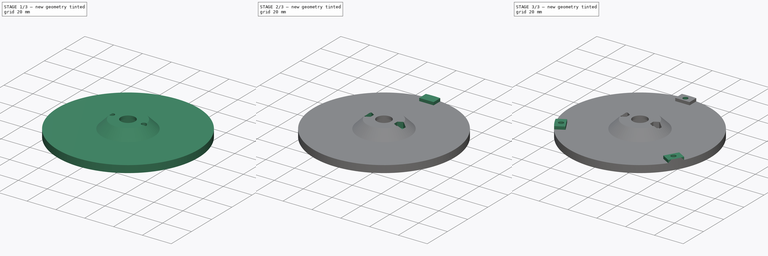
[diagram: build sequence overview — one tinted view per stage of 3, left to right]
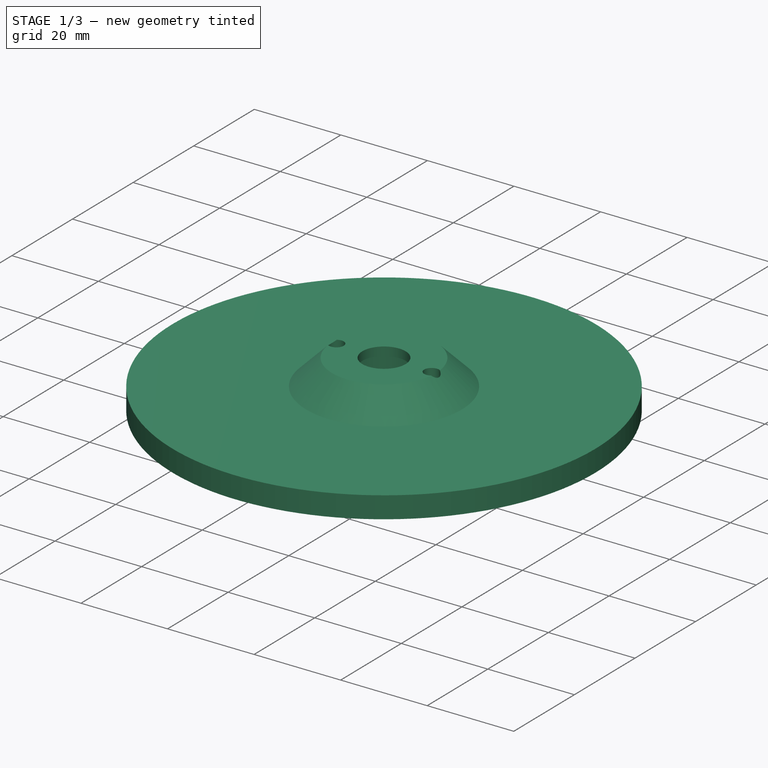
[diagram: stage 1 of 3 — iso view after this stage's code; geometry added in this stage tinted green]
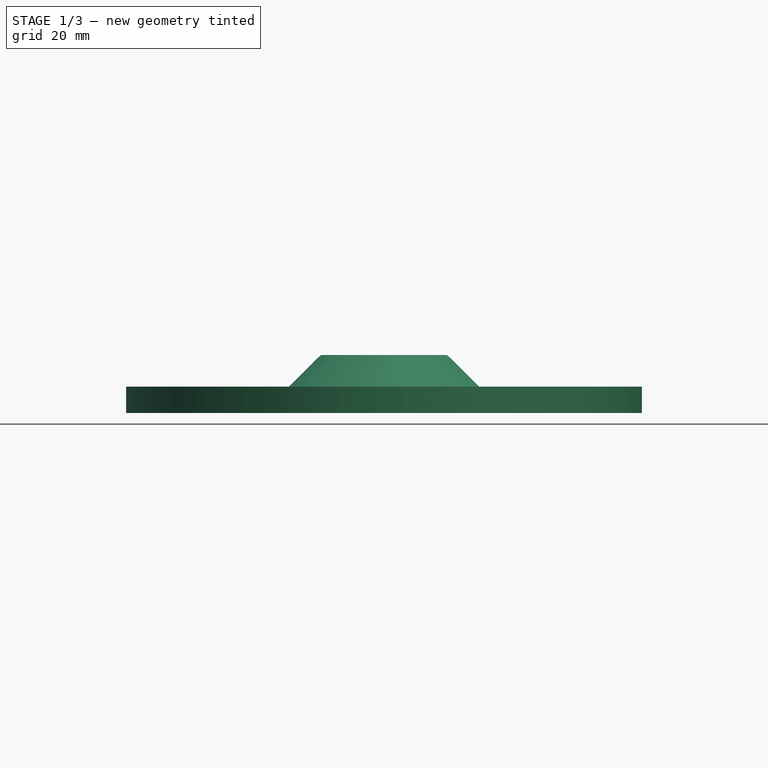
[diagram: stage 1 of 3 — front view after this stage's code; geometry added in this stage tinted green]
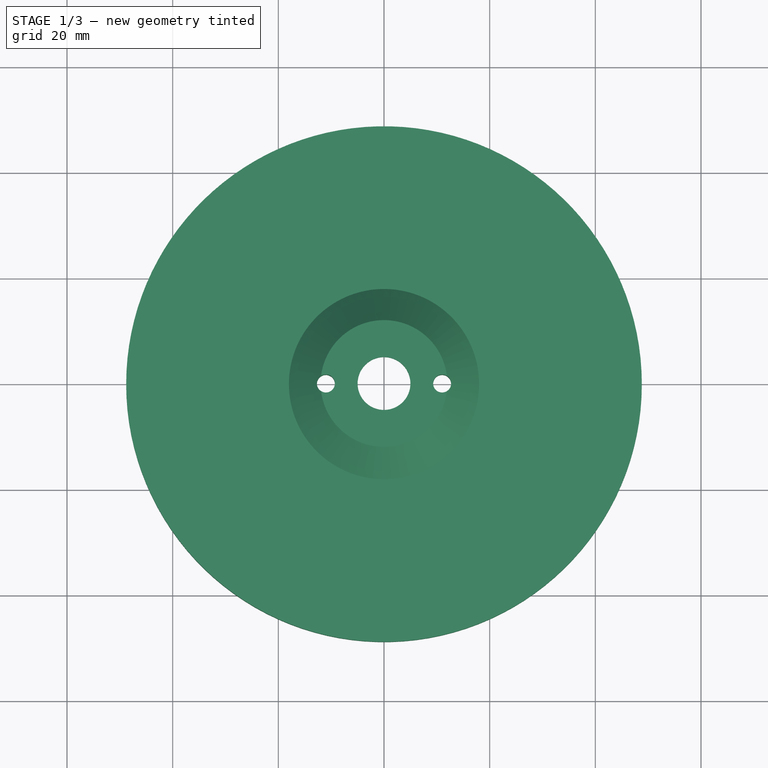
[diagram: stage 1 of 3 — top view after this stage's code; geometry added in this stage tinted green]
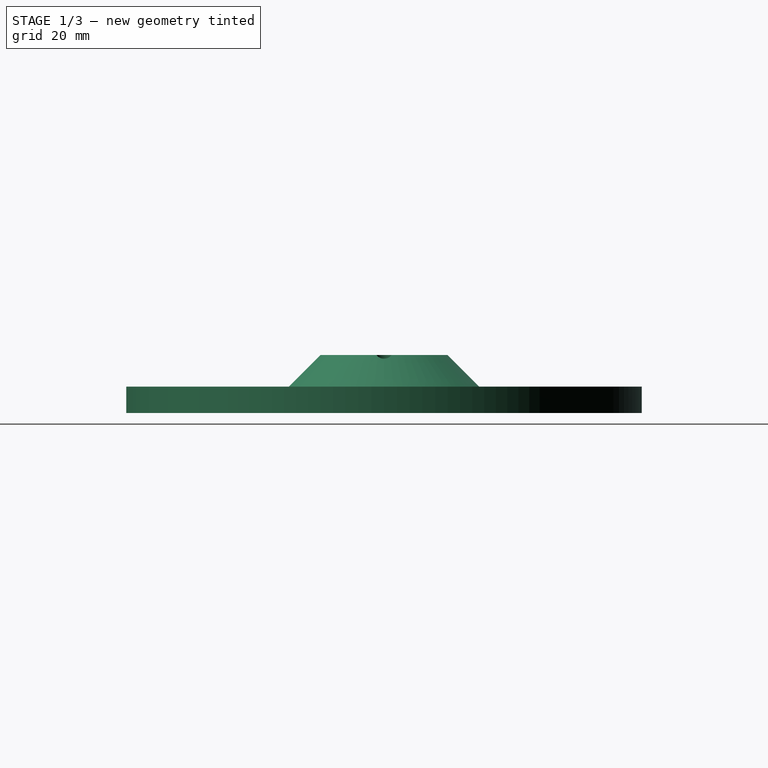
[diagram: stage 1 of 3 — right view after this stage's code; geometry added in this stage tinted green]
FCSTD DOCUMENT  (FreeCAD 0.19R24276 (Git))
Label: Art2BodyAWindow
License: All rights reserved
LicenseURL: http://en.wikipedia.org/wiki/All_rights_reserved
objects: Sketcher::SketchObject×7, PartDesign::Pocket×5, PartDesign::Line×5, PartDesign::CoordinateSystem×3, Spreadsheet::Sheet×1, PartDesign::Revolution×1, PartDesign::Pad×1, PartDesign::PolarPattern×1, PartDesign::Body×1
note: 31 computed .brp shape members not serialized (recipe doc carries the construction recipe); baked Part::Feature solids carry a one-line shape summary decoded from their .brp

FEATURE [Sketcher::SketchObject] Sketch
  FullyConstrained = true
  MapMode = 5
  Placement = pos=(0,0,0) rot=(1,0,0;1.5708rad)
  Support = -> [XZ_Plane]
  expr: Constraints[15] = Spreadsheet.Bearing655ZZBodyRadius
  sketch-geometry (8):
    g0: LineSegment StartX=5 StartY=11 StartZ=0 EndX=5 EndY=9 EndZ=0
    g1: LineSegment StartX=5 StartY=9 StartZ=0 EndX=8.2 EndY=9 EndZ=0
    g2: LineSegment StartX=8.2 StartY=9 StartZ=0 EndX=8.2 EndY=0 EndZ=0
    g3: LineSegment StartX=8.2 StartY=0 StartZ=0 EndX=48.8 EndY=0 EndZ=0
    g4: LineSegment StartX=48.8 StartY=0 StartZ=0 EndX=48.8 EndY=5 EndZ=0
    g5: LineSegment StartX=48.8 StartY=5 StartZ=0 EndX=18 EndY=5 EndZ=0
    g6: LineSegment StartX=18 StartY=5 StartZ=0 EndX=12 EndY=11 EndZ=0
    g7: LineSegment StartX=12 StartY=11 StartZ=0 EndX=5 EndY=11 EndZ=0
  constraints (24):
    c: Vertical(g0)
    c: Coincident(g0,g1)
    c: Horizontal(g1)
    c: Coincident(g1,g2)
    c: Vertical(g2)
    c: Coincident(g2,g3)
    c: Horizontal(g3)
    c: Coincident(g3,g4)
    c: Vertical(g4)
    c: Coincident(g4,g5)
    c: Horizontal(g5)
    c: Coincident(g5,g6)
    c: Coincident(g6,g7)
    c: Coincident(g7,g0)
    c: Horizontal(g7)
    c: DistanceX(g-1,g2) = 8.2
    c: DistanceY(g2,g2) = 9
    c: PointOnObject(g2,g-1)
    c: DistanceY(g0,g0) = 2
    c: DistanceX(g-1,g3) = 48.8
    c: DistanceY(g4,g4) = 5
    c: DistanceX(g-1,g6) = 12
    c: DistanceX(g-1,g0) = 5
    c: Angle(g6,g-1) = 0.785398
FEATURE [Spreadsheet::Sheet] Spreadsheet
  cells = A2=M3BoltBodyRadius; B2(M3BoltBodyRadius)=1.7; A3=M3BoltHeadRadius; B3(M3BoltHeadRadius)=2.95; A4=M3NutCircumradius; B4(M3NutCircumradius)=3.35; A5=M3NutThickness; B5(M3NutThickness)=3; A6=Bearing655ZZBodyRadius; B6(Bearing655ZZBodyRadius)=8.199999999999999
FEATURE [PartDesign::Revolution] Revolution
  Angle = 360
  Axis = (0,2e-16,1)
  Base = (0,0,0)
  Placement = pos=(0,0,0) rot=(1,0,0;1.5708rad)
  Profile = -> Sketch
  ReferenceAxis = -> Sketch [V_Axis]
  Refine = true
  Reversed = true
FEATURE [Sketcher::SketchObject] Sketch001
  FullyConstrained = true
  MapMode = 5
  Placement = pos=(0,0,0) rot=(1,0,0;3.14159rad)
  Support = -> [Revolution]
  sketch-geometry (4):
    g0: LineSegment StartX=-15.3 StartY=3.5 StartZ=0 EndX=15.3 EndY=3.5 EndZ=0
    g1: LineSegment StartX=15.3 StartY=3.5 StartZ=0 EndX=15.3 EndY=-3.5 EndZ=0
    g2: LineSegment StartX=15.3 StartY=-3.5 StartZ=0 EndX=-15.3 EndY=-3.5 EndZ=0
    g3: LineSegment StartX=-15.3 StartY=-3.5 StartZ=0 EndX=-15.3 EndY=3.5 EndZ=0
  constraints (10):
    c: Coincident(g0,g1)
    c: Coincident(g1,g2)
    c: Coincident(g2,g3)
    c: Coincident(g3,g0)
    c: Horizontal(g0)
    c: Vertical(g3)
    c: Symmetric(g1,g0,g-1)
    c: Symmetric(g1,g2,g-2)
    c: DistanceY(g3,g3) = 7
    c: DistanceX(g2,g2) = 30.6
FEATURE [PartDesign::Pocket] Pocket
  BaseFeature = -> Revolution
  Length = 4
  Length2 = 100
  Placement = pos=(0,0,0) rot=(1,0,0;1.5708rad)
  Profile = -> Sketch001
  Refine = true
  Type = 0
FEATURE [Sketcher::SketchObject] Sketch002
  FullyConstrained = true
  MapMode = 5
  Placement = pos=(0,3.6e-15,4) rot=(1,0,0;3.14159rad)
  Support = -> [Pocket]
  expr: Constraints[4] = Spreadsheet.M3BoltBodyRadius
  sketch-geometry (2):
    g0: Circle CenterX=-11 CenterY=0 CenterZ=0 NormalX=0 NormalY=0 NormalZ=1 AngleXU=0 Radius=1.7
    g1: Circle CenterX=11 CenterY=0 CenterZ=0 NormalX=0 NormalY=0 NormalZ=1 AngleXU=0 Radius=1.7
  constraints (5):
    c: PointOnObject(g0,g-1)
    c: Symmetric(g1,g0,g-2)
    c: DistanceX(g0,g1) = 22
    c: Equal(g1,g0)
    c: Radius(g1) = 1.7
FEATURE [PartDesign::Pocket] Pocket001
  BaseFeature = -> Pocket
  Length = 5
  Length2 = 100
  Placement = pos=(0,0,0) rot=(1,0,0;1.5708rad)
  Profile = -> Sketch002
  Refine = true
  Type = 1
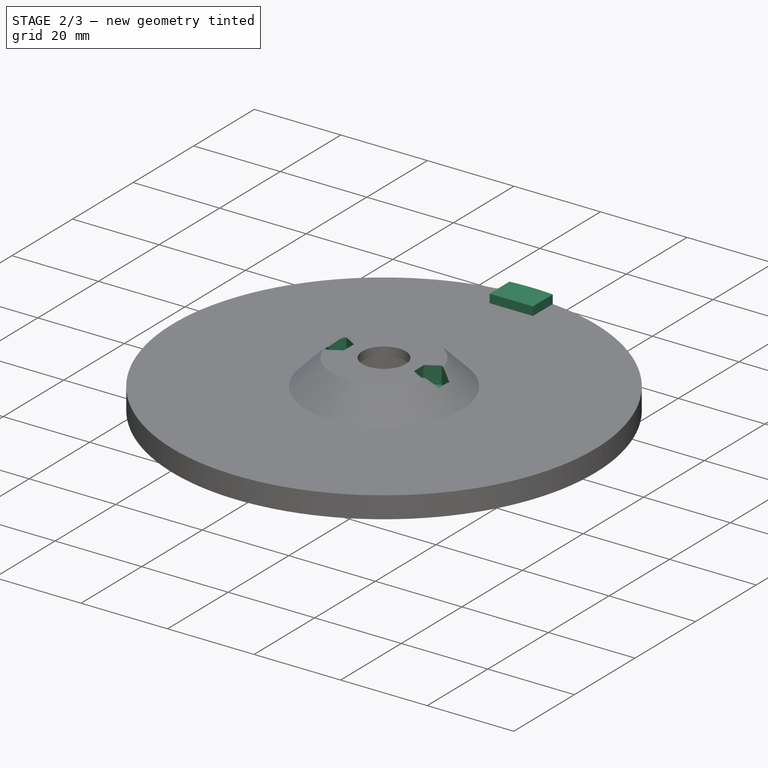
[diagram: stage 2 of 3 — iso view after this stage's code; geometry added in this stage tinted green]
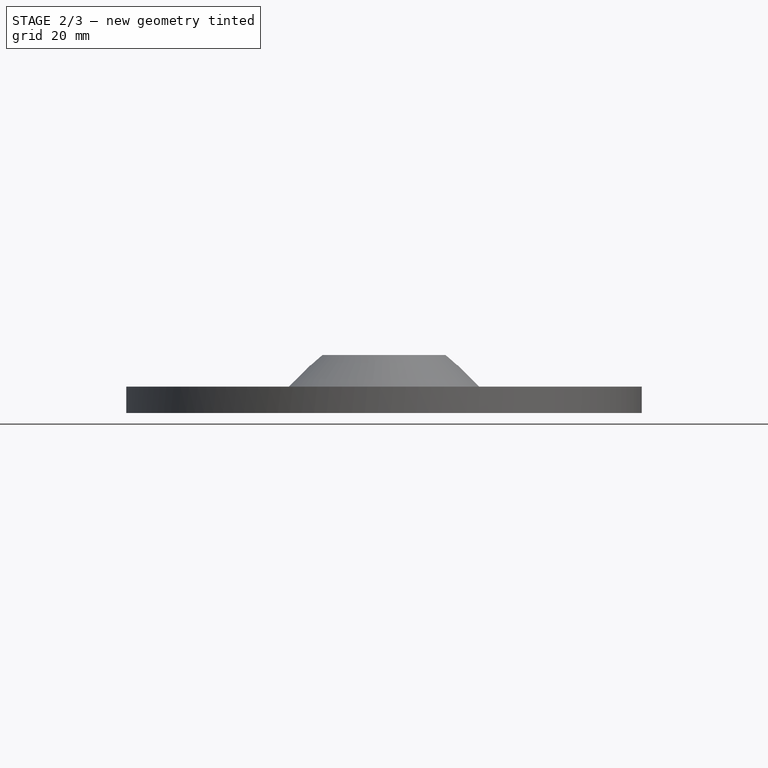
[diagram: stage 2 of 3 — front view after this stage's code; geometry added in this stage tinted green]
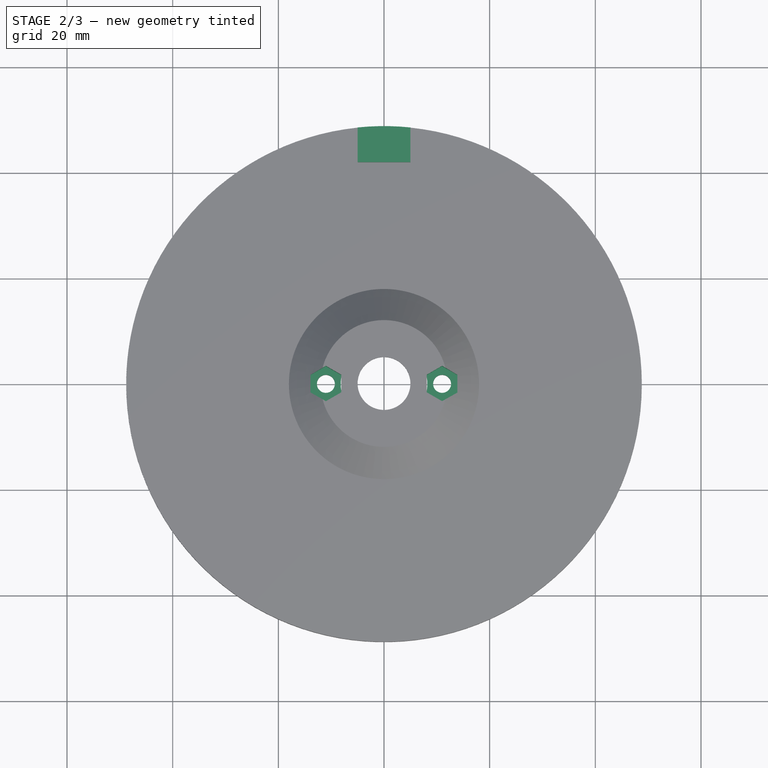
[diagram: stage 2 of 3 — top view after this stage's code; geometry added in this stage tinted green]
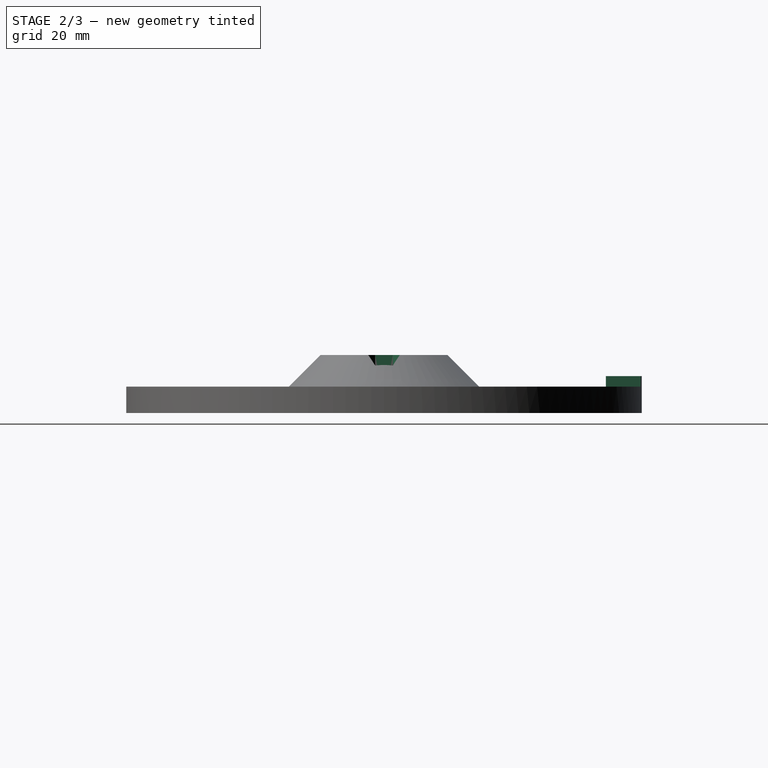
[diagram: stage 2 of 3 — right view after this stage's code; geometry added in this stage tinted green]
FEATURE [Sketcher::SketchObject] Sketch003
  ExternalGeometry = -> [Pocket001]
  FullyConstrained = true
  MapMode = 5
  Placement = pos=(0,7.3e-15,11) rot=(0,0,1;3.14159rad)
  Support = -> [Pocket001]
  expr: Constraints[39] = Spreadsheet.M3NutCircumradius
  sketch-geometry (14):
    g0: LineSegment StartX=-11 StartY=-3.35 StartZ=0 EndX=-8.09881 EndY=-1.675 EndZ=0
    g1: LineSegment StartX=-8.09881 StartY=-1.675 StartZ=0 EndX=-8.09881 EndY=1.675 EndZ=0
    g2: LineSegment StartX=-8.09881 StartY=1.675 StartZ=0 EndX=-11 EndY=3.35 EndZ=0
    g3: LineSegment StartX=-11 StartY=3.35 StartZ=0 EndX=-13.9012 EndY=1.675 EndZ=0
    g4: LineSegment StartX=-13.9012 StartY=1.675 StartZ=0 EndX=-13.9012 EndY=-1.675 EndZ=0
    g5: LineSegment StartX=-13.9012 StartY=-1.675 StartZ=0 EndX=-11 EndY=-3.35 EndZ=0
    g6: Circle CenterX=-11 CenterY=0 CenterZ=0 NormalX=0 NormalY=0 NormalZ=1 AngleXU=0 Radius=3.35
    g7: LineSegment StartX=11 StartY=-3.35 StartZ=0 EndX=13.9012 EndY=-1.675 EndZ=0
    g8: LineSegment StartX=13.9012 StartY=-1.675 StartZ=0 EndX=13.9012 EndY=1.675 EndZ=0
    g9: LineSegment StartX=13.9012 StartY=1.675 StartZ=0 EndX=11 EndY=3.35 EndZ=0
    g10: LineSegment StartX=11 StartY=3.35 StartZ=0 EndX=8.09881 EndY=1.675 EndZ=0
    g11: LineSegment StartX=8.09881 StartY=1.675 StartZ=0 EndX=8.09881 EndY=-1.675 EndZ=0
    g12: LineSegment StartX=8.09881 StartY=-1.675 StartZ=0 EndX=11 EndY=-3.35 EndZ=0
    g13: Circle CenterX=11 CenterY=0 CenterZ=0 NormalX=0 NormalY=0 NormalZ=1 AngleXU=0 Radius=3.35
  constraints (32):
    c: Coincident(g0,g1)
    c: Coincident(g1,g2)
    c: Coincident(g2,g3)
    c: Coincident(g3,g4)
    c: Coincident(g4,g5)
    c: Coincident(g5,g0)
    c: Equal(g0, g1-g5) x5
    c: PointOnObject(g0,g6)
    c: PointOnObject(g1,g6)
    c: PointOnObject(g2,g6)
    c: PointOnObject(g3,g6)
    c: PointOnObject(g4,g6)
    c: PointOnObject(g5,g6)
    c: Coincident(g6,g-4)
    c: Coincident(g7,g8)
    c: Coincident(g8,g9)
    c: Coincident(g9,g10)
    c: Coincident(g10,g11)
    c: Coincident(g11,g12)
    c: Coincident(g12,g7)
    c: Equal(g7, g8-g12) x5
    c: PointOnObject(g7,g13)
    c: PointOnObject(g8,g13)
    c: PointOnObject(g9,g13)
    c: PointOnObject(g10,g13)
    c: PointOnObject(g11,g13)
    c: PointOnObject(g12,g13)
    c: Coincident(g13,g-3)
    c: Vertical(g1)
    c: Vertical(g11)
    c: Equal(g13,g6)
    c: Radius(g6) = 3.35
FEATURE [PartDesign::Pocket] Pocket002
  BaseFeature = -> Pocket001
  Length = 4
  Length2 = 100
  Placement = pos=(0,0,0) rot=(1,0,0;1.5708rad)
  Profile = -> Sketch003
  Refine = true
  Type = 0
FEATURE [Sketcher::SketchObject] Sketch004
  ExternalGeometry = -> [Pocket002]
  FullyConstrained = true
  MapMode = 5
  Placement = pos=(0,3.3e-15,5) rot=(0,0,1;3.14159rad)
  Support = -> [Pocket002]
  sketch-geometry (4):
    g0: ArcOfCircle CenterX=0 CenterY=0 CenterZ=0 NormalX=0 NormalY=0 NormalZ=1 AngleXU=0 Radius=48.8 StartAngle=4.60975 EndAngle=4.81503
    g1: LineSegment StartX=-5 StartY=-48.5432 StartZ=0 EndX=-5 EndY=-42 EndZ=0
    g2: LineSegment StartX=-5 StartY=-42 StartZ=0 EndX=5 EndY=-42 EndZ=0
    g3: LineSegment StartX=5 StartY=-42 StartZ=0 EndX=5 EndY=-48.5432 EndZ=0
  constraints (11):
    c: Coincident(g0,g-1)
    c: PointOnObject(g0,g-3)
    c: Vertical(g1)
    c: Coincident(g1,g2)
    c: Coincident(g2,g3)
    c: Coincident(g3,g0)
    c: Coincident(g1,g0)
    c: Vertical(g3)
    c: Symmetric(g2,g1,g-2)
    c: DistanceX(g2,g2) = 10
    c: DistanceY(g2,g0) = 42
FEATURE [PartDesign::Pad] Pad
  BaseFeature = -> Pocket002
  Direction = (1,1,1)
  Length = 2
  Length2 = 100
  Placement = pos=(0,0,0) rot=(1,0,0;1.5708rad)
  Profile = -> Sketch004
  Refine = true
  Type = 0
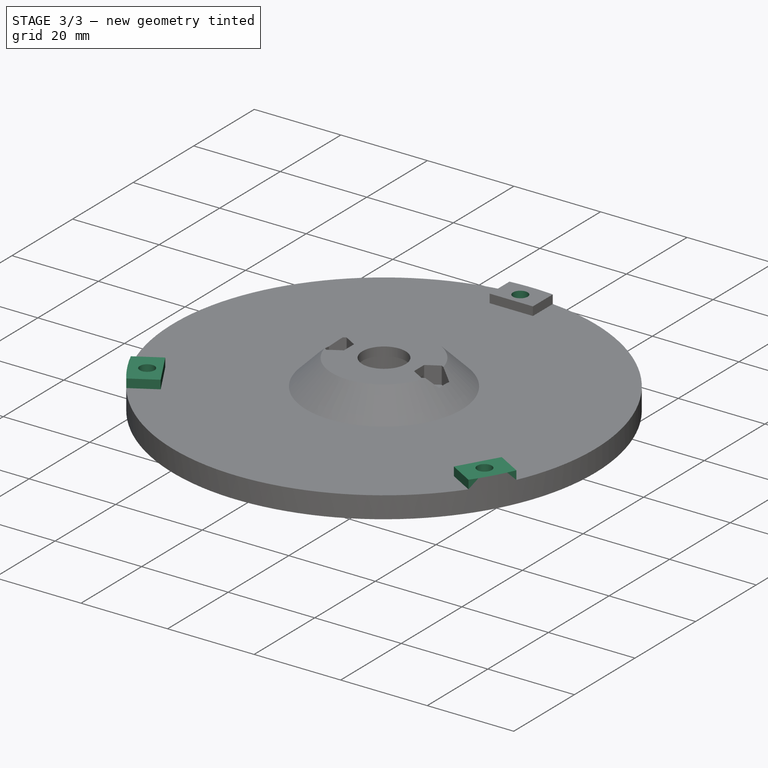
[diagram: stage 3 of 3 — iso view after this stage's code; geometry added in this stage tinted green]
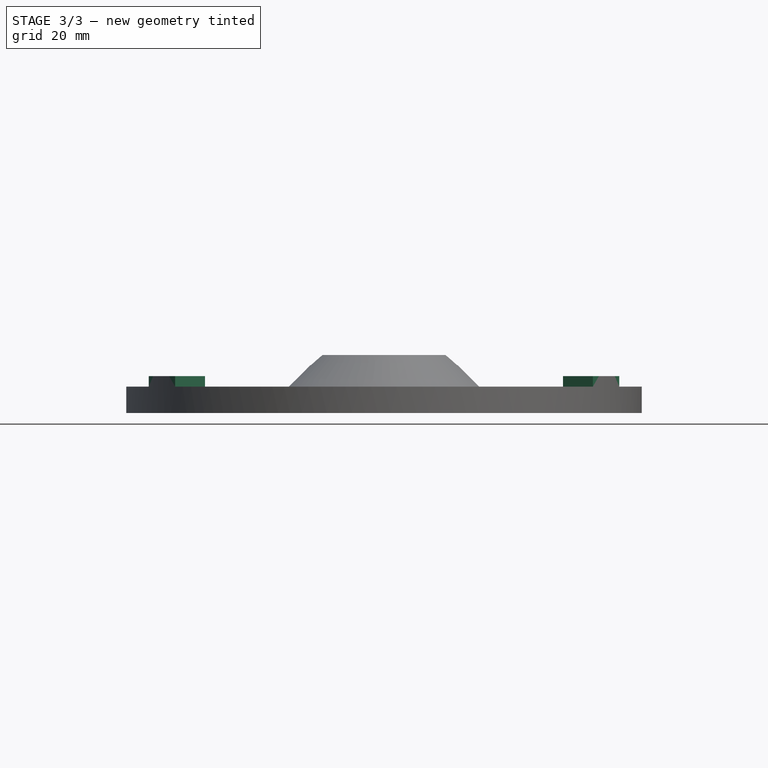
[diagram: stage 3 of 3 — front view after this stage's code; geometry added in this stage tinted green]
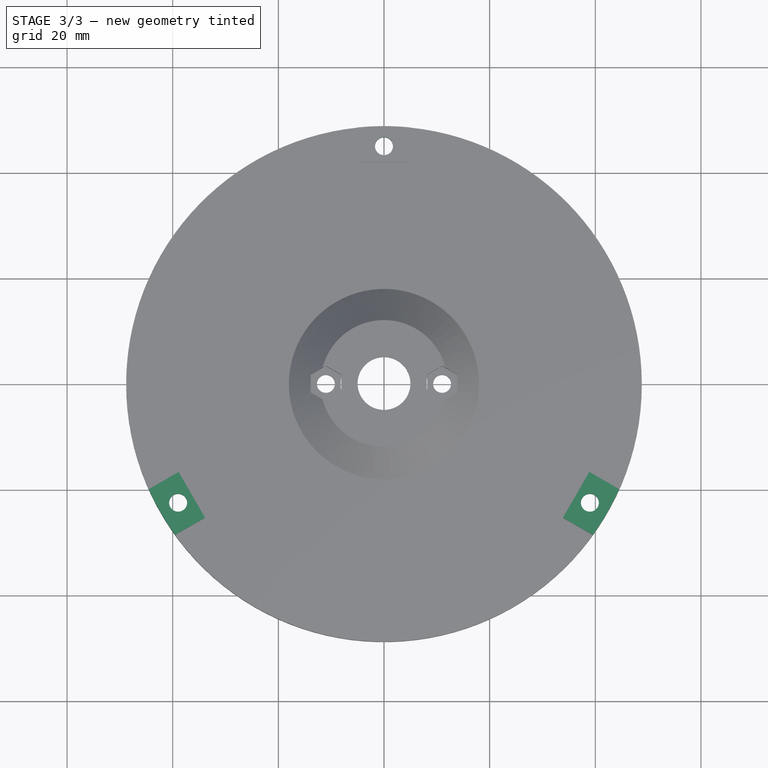
[diagram: stage 3 of 3 — top view after this stage's code; geometry added in this stage tinted green]
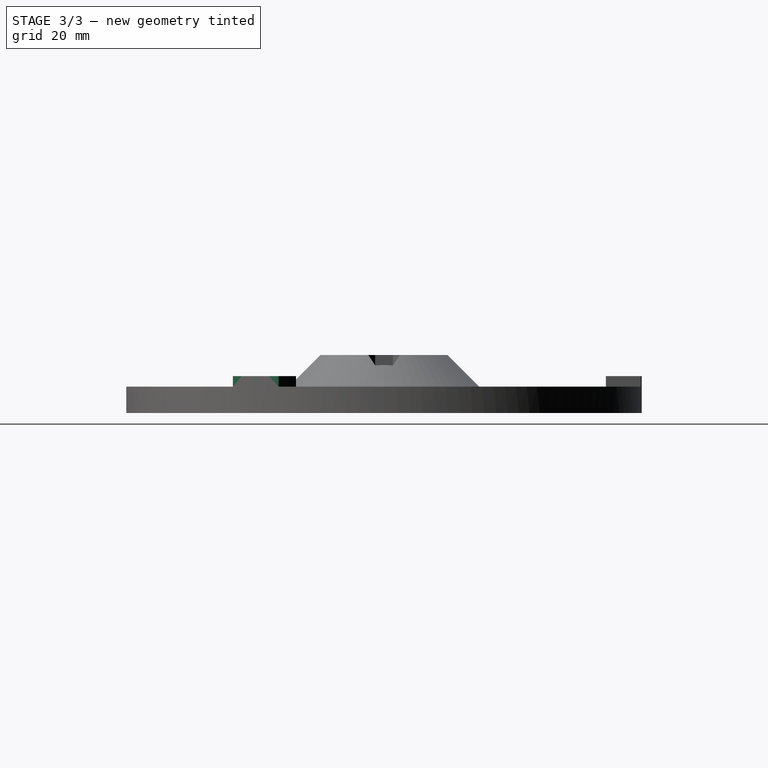
[diagram: stage 3 of 3 — right view after this stage's code; geometry added in this stage tinted green]
FEATURE [Sketcher::SketchObject] Sketch005
  FullyConstrained = true
  MapMode = 5
  Placement = pos=(0,1.6e-14,7) rot=(0,0,1;3.14159rad)
  Support = -> [Pad]
  expr: Constraints[1] = Spreadsheet.M3BoltBodyRadius
  sketch-geometry (1):
    g0: Circle CenterX=0 CenterY=-45 CenterZ=0 NormalX=0 NormalY=0 NormalZ=1 AngleXU=0 Radius=1.7
  constraints (3):
    c: PointOnObject(g0,g-2)
    c: Radius(g0) = 1.7
    c: DistanceY(g0,g-1) = 45
FEATURE [PartDesign::Pocket] Pocket003
  BaseFeature = -> Pad
  Length = 5
  Length2 = 100
  Placement = pos=(0,0,0) rot=(1,0,0;1.5708rad)
  Profile = -> Sketch005
  Refine = true
  Type = 1
FEATURE [Sketcher::SketchObject] Sketch006
  ExternalGeometry = -> [Pocket003]
  FullyConstrained = true
  MapMode = 5
  Placement = pos=(0,0,0) rot=(1,0,0;3.14159rad)
  Support = -> [Pocket003]
  expr: Constraints[1] = Spreadsheet.M3BoltHeadRadius
  sketch-geometry (1):
    g0: Circle CenterX=0 CenterY=-45 CenterZ=0 NormalX=0 NormalY=0 NormalZ=1 AngleXU=0 Radius=2.95
  constraints (2):
    c: Coincident(g0,g-3)
    c: Radius(g0) = 2.95
FEATURE [PartDesign::Pocket] Pocket004
  BaseFeature = -> Pocket003
  Length = 3
  Length2 = 100
  Placement = pos=(0,0,0) rot=(1,0,0;1.5708rad)
  Profile = -> Sketch006
  Refine = true
  Type = 0
FEATURE [PartDesign::PolarPattern] PolarPattern
  Angle = 360
  Axis = -> Sketch004 [N_Axis]
  BaseFeature = -> Pocket004
  Occurrences = 3
  Originals = -> [Pad,Pocket003,Pocket004]
  Placement = pos=(0,0,0) rot=(1,0,0;1.5708rad)
  Refine = true
FEATURE [PartDesign::CoordinateSystem] LCS_Art2BodyAWindow
  AttacherType = Attacher::AttachEngine3D
  MapMode = 45
  Placement = pos=(-2.22e-14,1.42e-14,7) rot=(0,0,1;0rad)
  Support = -> [PolarPattern]
FEATURE [PartDesign::CoordinateSystem] LCS_Bearing
  AttacherType = Attacher::AttachEngine3D
  MapMode = 11
  Placement = pos=(0,6e-15,9) rot=(0.707107,-0.707107,0;3.14159rad)
  Support = -> [PolarPattern]
FEATURE [PartDesign::CoordinateSystem] LCS_BearingFix
  AttacherType = Attacher::AttachEngine3D
  MapMode = 45
  Placement = pos=(9.3e-15,4.8e-15,4) rot=(0,0,1;1.5708rad)
  Support = -> [PolarPattern]
FEATURE [PartDesign::Line] HoleAxis_1
  AttacherType = Attacher::AttachEngineLine
  Length = 4.79083
  MapMode = 19
  Placement = pos=(2e-16,45,3) rot=(0,0,1;3.14159rad)
  ResizeMode = 1
  Support = -> [PolarPattern]
FEATURE [PartDesign::Line] HoleAxis_2
  AttacherType = Attacher::AttachEngineLine
  Length = 4.79858
  MapMode = 19
  Placement = pos=(-38.9711,-22.5,3) rot=(0,0,-1;1.0472rad)
  ResizeMode = 1
  Support = -> [PolarPattern]
FEATURE [PartDesign::Line] HoleAxis_3
  AttacherType = Attacher::AttachEngineLine
  Length = 4.79858
  MapMode = 19
  Placement = pos=(38.9711,-22.5,3) rot=(0,0,1;1.0472rad)
  ResizeMode = 1
  Support = -> [PolarPattern]
FEATURE [PartDesign::Line] HoleAxis_4
  AttacherType = Attacher::AttachEngineLine
  Length = 4.79083
  MapMode = 19
  Placement = pos=(11,1.4e-14,7) rot=(-1,0,0;3.14159rad)
  ResizeMode = 1
  Support = -> [PolarPattern]
FEATURE [PartDesign::Line] HoleAxis_5
  AttacherType = Attacher::AttachEngineLine
  Length = 4.79083
  MapMode = 19
  Placement = pos=(-11,1.4e-14,7) rot=(-1,0,0;3.14159rad)
  ResizeMode = 1
  Support = -> [PolarPattern]
FEATURE [PartDesign::Body] Body  label="Art2BodyAWindow"
  Group = -> [Sketch,Revolution,Sketch001,Pocket,Sketch002,Pocket001,Sketch003,Pocket002,Sketch004,Pad,Sketch005,Pocket003,Sketch006,Pocket004,PolarPattern,LCS_Art2BodyAWindow,LCS_Bearing,LCS_BearingFix,HoleAxis_1,HoleAxis_2,HoleAxis_3,HoleAxis_4,HoleAxis_5]
  Origin = -> Origin
  Tip = -> PolarPattern
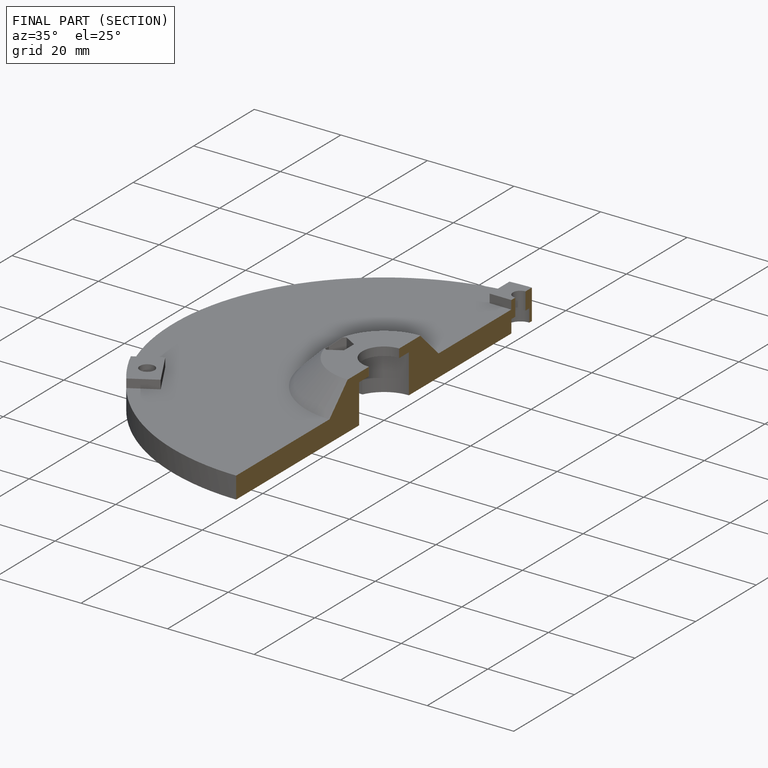
[diagram: finished part — half-section view (interior)]
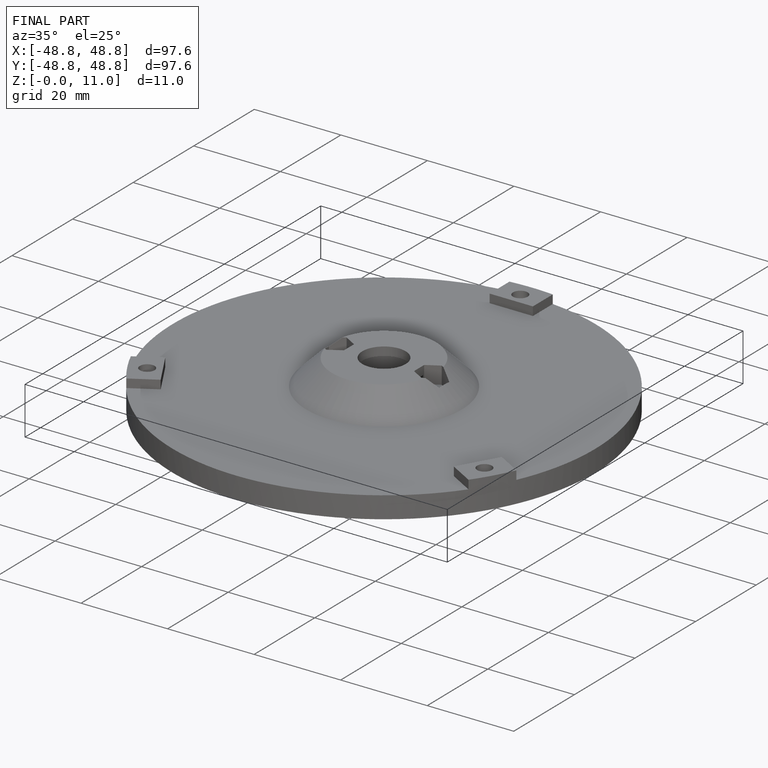
[diagram: finished part — iso view with bounding-box wireframe]
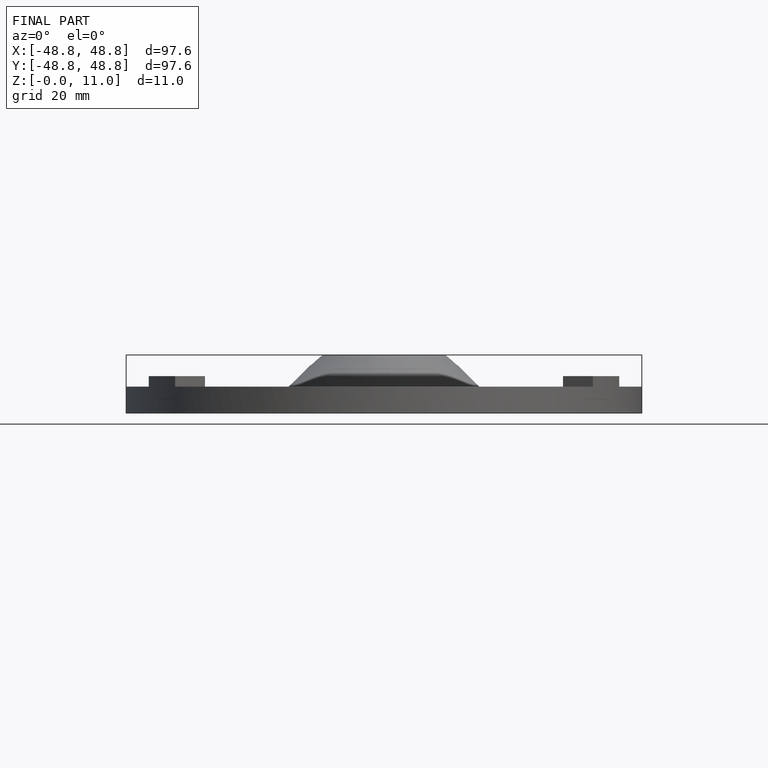
[diagram: finished part — front view with bounding-box wireframe]
